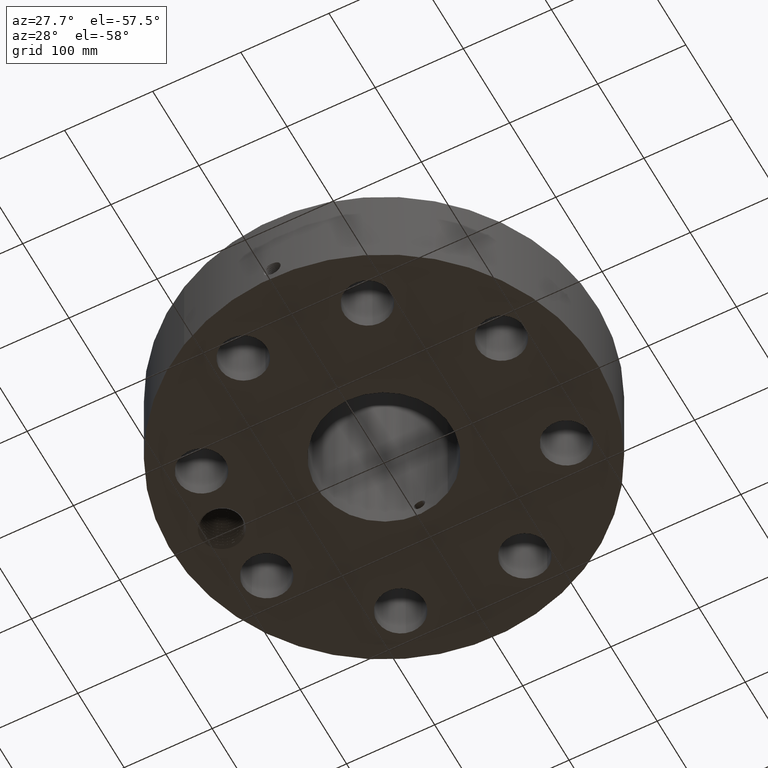
[diagram: clean part render]
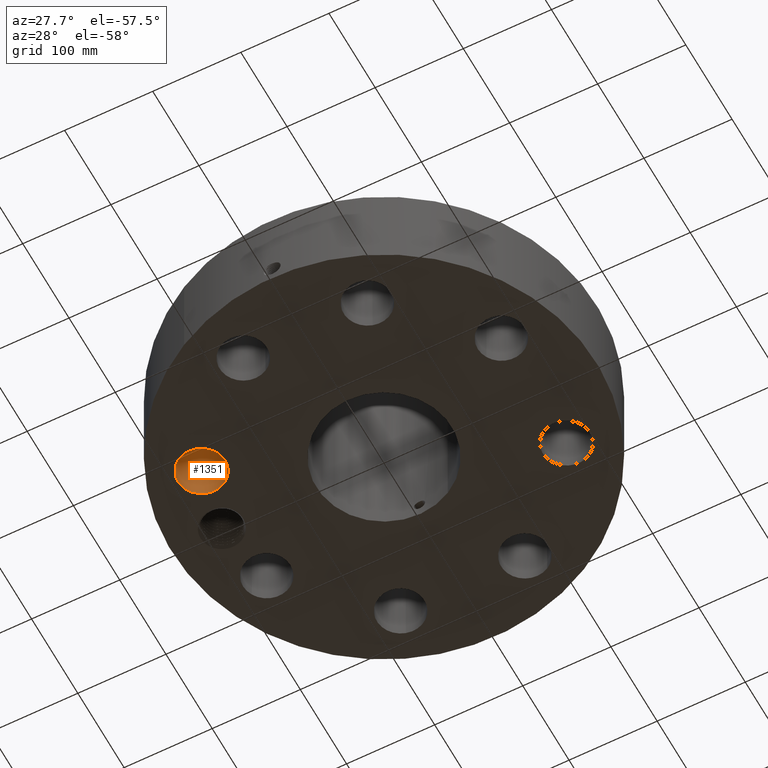
[diagram: same view with one face highlighted and labeled with its STEP entity id]
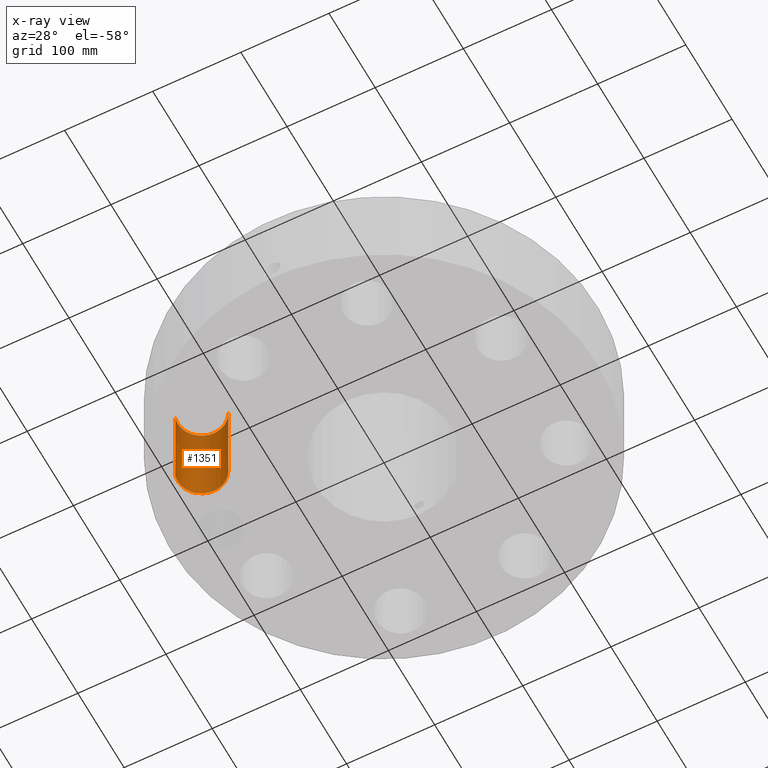
[diagram: x-ray of the same camera — body ghosted, the highlighted face saturated]
A machine part, auxiliary view. The second image highlights one B-rep face of the part: STEP entity #1351.
The next image is the same camera in x-ray: the body ghosted, the highlighted face saturated — about 31% of this face is hidden behind the body in this view.
In plain terms, the highlighted cylindrical surface (edge-blend (fillet) strip) has radius 26.924 mm, axis along (-0, 0, -1).
Its self-contained STEP definition (entity closure, byte-faithful):
#325=AXIS2_PLACEMENT_3D('Circle Axis2P3D',#323,#324,$) ;
#645=AXIS2_PLACEMENT_3D('Circle Axis2P3D',#643,#644,$) ;
#1326=AXIS2_PLACEMENT_3D('Cylinder Axis2P3D',#1323,#1324,#1325) ;
#318=CARTESIAN_POINT('Vertex',(-5.68100400295,-2.47602298165,0.250000000001)) ;
#320=CARTESIAN_POINT('Vertex',(-7.71524921852,-3.07288678767,0.250000000001)) ;
#323=CARTESIAN_POINT('Axis2P3D Location',(-6.69812661073,-2.77445488466,0.250000000001)) ;
#643=CARTESIAN_POINT('Axis2P3D Location',(-6.69812661073,-2.77445488466,4.50000000002)) ;
#647=CARTESIAN_POINT('Vertex',(-7.71524921852,-3.07288678767,4.50000000002)) ;
#649=CARTESIAN_POINT('Vertex',(-5.68100400295,-2.47602298165,4.50000000002)) ;
#1323=CARTESIAN_POINT('Axis2P3D Location',(-6.69812661073,-2.77445488466,4.49606299214)) ;
#1328=CARTESIAN_POINT('Line Origine',(-5.68100400295,-2.47602298165,2.37500000001)) ;
#1333=CARTESIAN_POINT('Line Origine',(-7.71524921852,-3.07288678767,2.37500000001)) ;
#324=DIRECTION('Axis2P3D Direction',(0.,0.,-0.0393700787402)) ;
#644=DIRECTION('Axis2P3D Direction',(0.,0.,-0.0393700787402)) ;
#1324=DIRECTION('Axis2P3D Direction',(-0.,0.,-0.0393700787402)) ;
#1325=DIRECTION('Axis2P3D XDirection',(-0.0377775444876,-0.0110842335096,0.)) ;
#1329=DIRECTION('Vector Direction',(0.,0.,-0.0393700787402)) ;
#1334=DIRECTION('Vector Direction',(0.,0.,-0.0393700787402)) ;
#1330=VECTOR('Line Direction',#1329,0.0393700787402) ;
#1335=VECTOR('Line Direction',#1334,0.0393700787402) ;
#1346=ORIENTED_EDGE('',*,*,#1337,.F.) ;
#1347=ORIENTED_EDGE('',*,*,#327,.T.) ;
#1348=ORIENTED_EDGE('',*,*,#1332,.T.) ;
#1349=ORIENTED_EDGE('',*,*,#651,.F.) ;
#1351=ADVANCED_FACE('PartBody',(#1350),#1327,.F.) ;
#326=CIRCLE('generated circle',#325,1.06) ;
#646=CIRCLE('generated circle',#645,1.06) ;
#1327=CYLINDRICAL_SURFACE('generated cylinder',#1326,1.06) ;
#327=EDGE_CURVE('',#321,#319,#326,.T.) ;
#651=EDGE_CURVE('',#648,#650,#646,.T.) ;
#1332=EDGE_CURVE('',#319,#650,#1331,.F.) ;
#1337=EDGE_CURVE('',#321,#648,#1336,.F.) ;
#1345=EDGE_LOOP('',(#1346,#1347,#1348,#1349)) ;
#1350=FACE_OUTER_BOUND('',#1345,.T.) ;
#1331=LINE('Line',#1328,#1330) ;
#1336=LINE('Line',#1333,#1335) ;
#319=VERTEX_POINT('',#318) ;
#321=VERTEX_POINT('',#320) ;
#648=VERTEX_POINT('',#647) ;
#650=VERTEX_POINT('',#649) ;